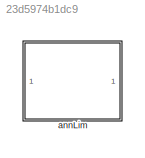
MODEL slx_23d5974b1dc9
KIND library
CONFIG AbsTol = auto
CONFIG EnableMultiTasking = off
CONFIG FixedStep = auto
CONFIG MaxStep = auto
CONFIG MinStep = auto
CONFIG RelTol = 1e-3
CONFIG SampleTimeConstraint = Unconstrained
CONFIG SolverName = VariableStepAuto
CONFIG StartTime = 0.0
CONFIG StopTime = 10.0
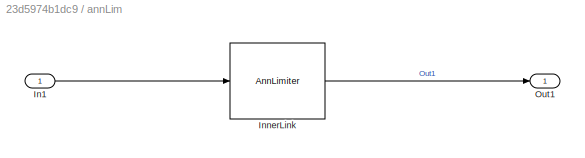
BLOCK [SubSystem] annLim
BLOCK [Inport] annLim/In1
BLOCK [Reference] annLim/InnerLink  REF=AnnLimiterBtc/AnnLimiter
  SourceBlock = AnnLimiterBtc/AnnLimiter
  SourceProductName = Bose Blocklib
  SourceType = Blocklib AnnLimiter
BLOCK [Outport] annLim/Out1
LINE annLim/In1:1 -> annLim/InnerLink:1
LINE annLim/InnerLink:1 -> annLim/Out1:1
